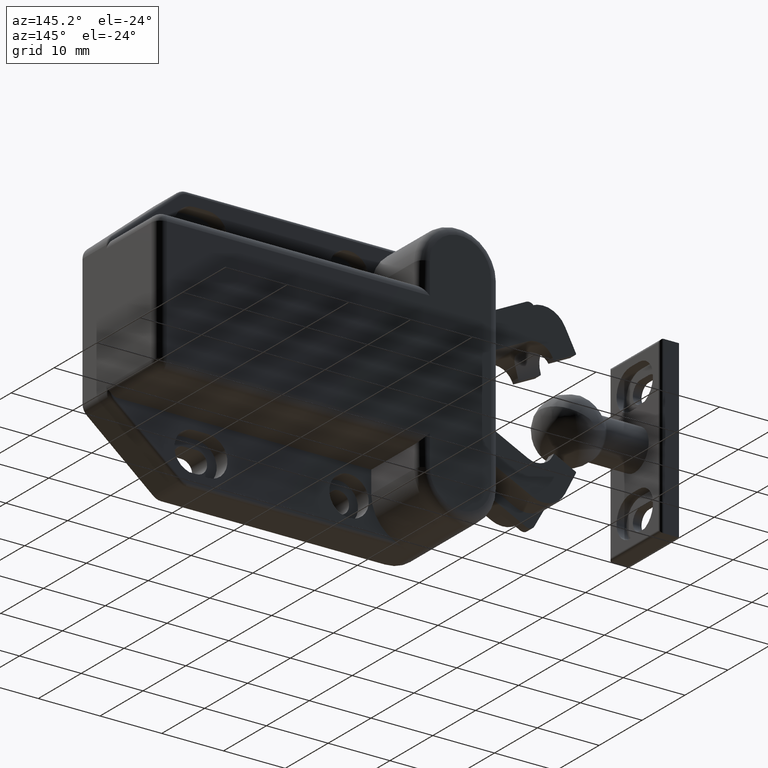
[diagram: clean part render]
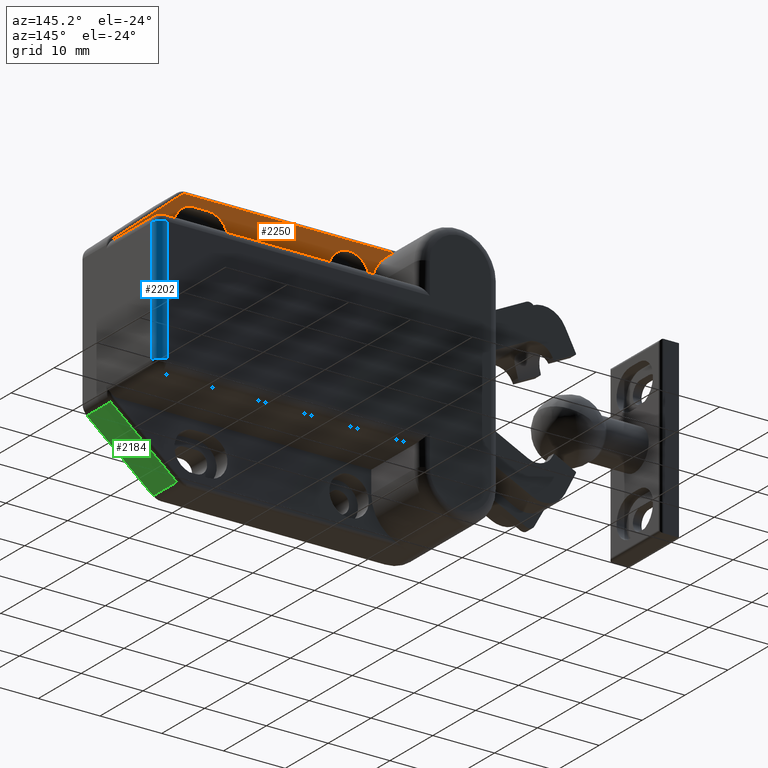
[diagram: same view with three faces highlighted in distinct colors, each labeled with its STEP entity id]
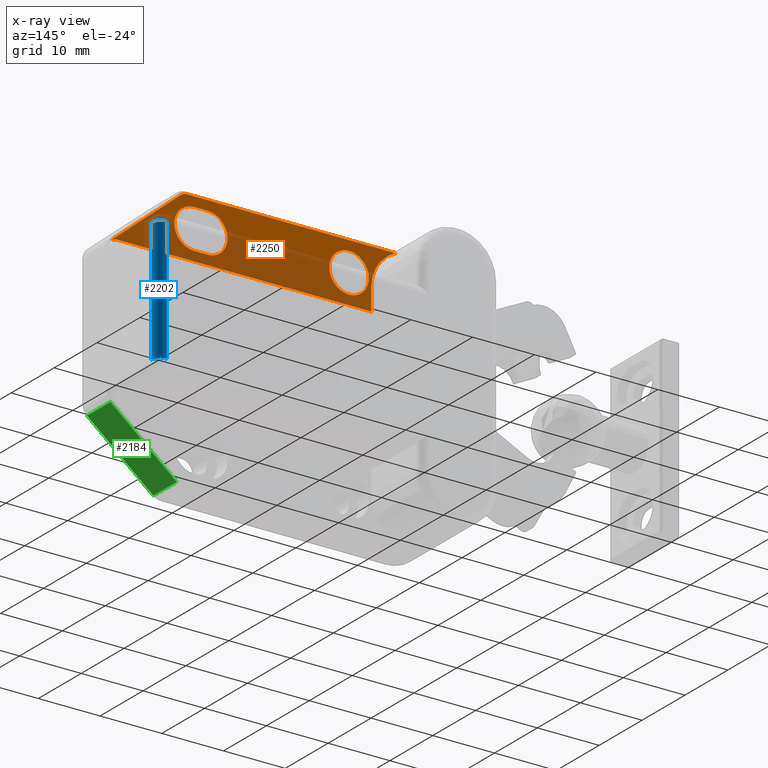
[diagram: x-ray of the same camera — body ghosted, the three highlighted faces saturated]
A machine part, auxiliary view with three faces highlighted in distinct colors.
The next image is the same camera in x-ray (body ghosted, the three faces saturated) — at least one of them is partly hidden behind the body in this view.
Their STEP definitions:

[orange] entity #2250 — the highlighted planar face has unit normal (0, 1, -0).
#49=FACE_BOUND('',#814,.T.);
#50=FACE_BOUND('',#815,.T.);
#109=PLANE('',#2457);
#163=LINE('',#3347,#359);
#165=LINE('',#3366,#361);
#223=LINE('',#3598,#419);
#227=LINE('',#3609,#423);
#257=LINE('',#3680,#453);
#259=LINE('',#3684,#455);
#359=VECTOR('',#2624,33.8359202100396);
#361=VECTOR('',#2638,13.9596495894818);
#419=VECTOR('',#2880,2.2);
#423=VECTOR('',#2892,2.2);
#453=VECTOR('',#2960,41.1);
#455=VECTOR('',#2964,3.54999999999998);
#672=FACE_OUTER_BOUND('',#813,.T.);
#813=EDGE_LOOP('',(#1850,#1851,#1852,#1853,#1854,#1855,#1856,#1857));
#814=EDGE_LOOP('',(#1858));
#815=EDGE_LOOP('',(#1859,#1860,#1861,#1862));
#900=CIRCLE('',#2336,1.5);
#904=CIRCLE('',#2342,1.5);
#946=CIRCLE('',#2426,3.2);
#947=CIRCLE('',#2429,3.2);
#949=CIRCLE('',#2433,3.2);
#955=CIRCLE('',#2453,1.5);
#956=CIRCLE('',#2458,6.45);
#1013=VERTEX_POINT('',#3344);
#1014=VERTEX_POINT('',#3346);
#1017=VERTEX_POINT('',#3358);
#1019=VERTEX_POINT('',#3364);
#1021=VERTEX_POINT('',#3370);
#1084=VERTEX_POINT('',#3584);
#1085=VERTEX_POINT('',#3588);
#1086=VERTEX_POINT('',#3589);
#1089=VERTEX_POINT('',#3597);
#1091=VERTEX_POINT('',#3603);
#1113=VERTEX_POINT('',#3674);
#1114=VERTEX_POINT('',#3678);
#1115=VERTEX_POINT('',#3682);
#1230=EDGE_CURVE('',#1013,#1014,#163,.T.);
#1234=EDGE_CURVE('',#1017,#1013,#900,.T.);
#1237=EDGE_CURVE('',#1019,#1017,#165,.T.);
#1240=EDGE_CURVE('',#1021,#1019,#904,.T.);
#1340=EDGE_CURVE('',#1084,#1084,#946,.T.);
#1341=EDGE_CURVE('',#1085,#1086,#947,.T.);
#1345=EDGE_CURVE('',#1089,#1085,#223,.T.);
#1348=EDGE_CURVE('',#1091,#1089,#949,.T.);
#1351=EDGE_CURVE('',#1086,#1091,#227,.T.);
#1384=EDGE_CURVE('',#1021,#1113,#955,.T.);
#1386=EDGE_CURVE('',#1113,#1114,#257,.T.);
#1388=EDGE_CURVE('',#1114,#1115,#259,.T.);
#1389=EDGE_CURVE('',#1115,#1014,#956,.T.);
#1850=ORIENTED_EDGE('',*,*,#1240,.F.);
#1851=ORIENTED_EDGE('',*,*,#1384,.T.);
#1852=ORIENTED_EDGE('',*,*,#1386,.T.);
#1853=ORIENTED_EDGE('',*,*,#1388,.T.);
#1854=ORIENTED_EDGE('',*,*,#1389,.T.);
#1855=ORIENTED_EDGE('',*,*,#1230,.F.);
#1856=ORIENTED_EDGE('',*,*,#1234,.F.);
#1857=ORIENTED_EDGE('',*,*,#1237,.F.);
#1858=ORIENTED_EDGE('',*,*,#1340,.T.);
#1859=ORIENTED_EDGE('',*,*,#1341,.T.);
#1860=ORIENTED_EDGE('',*,*,#1351,.T.);
#1861=ORIENTED_EDGE('',*,*,#1348,.T.);
#1862=ORIENTED_EDGE('',*,*,#1345,.T.);
#2250=ADVANCED_FACE('',(#672,#49,#50),#109,.T.);
#2336=AXIS2_PLACEMENT_3D('',#3360,#2630,#2631);
#2342=AXIS2_PLACEMENT_3D('',#3372,#2644,#2645);
#2426=AXIS2_PLACEMENT_3D('',#3585,#2866,#2867);
#2429=AXIS2_PLACEMENT_3D('',#3590,#2872,#2873);
#2433=AXIS2_PLACEMENT_3D('',#3604,#2885,#2886);
#2453=AXIS2_PLACEMENT_3D('',#3676,#2955,#2956);
#2457=AXIS2_PLACEMENT_3D('',#3686,#2967,#2968);
#2458=AXIS2_PLACEMENT_3D('',#3687,#2969,#2970);
#2624=DIRECTION('',(3.59586404736893E-16,1.,0.));
#2630=DIRECTION('center_axis',(0.,0.,-1.));
#2631=DIRECTION('ref_axis',(-0.940271577683112,-0.340425263753018,0.));
#2638=DIRECTION('',(-0.64018439966448,0.768221279597376,0.));
#2644=DIRECTION('center_axis',(0.,0.,-1.));
#2645=DIRECTION('ref_axis',(-0.424155396249723,-0.90558942122368,0.));
#2866=DIRECTION('center_axis',(0.,0.,-1.));
#2867=DIRECTION('ref_axis',(-1.,0.,0.));
#2872=DIRECTION('center_axis',(0.,0.,-1.));
#2873=DIRECTION('ref_axis',(1.,0.,0.));
#2880=DIRECTION('',(1.00929365875014E-15,1.,0.));
#2885=DIRECTION('center_axis',(0.,0.,-1.));
#2886=DIRECTION('ref_axis',(-1.,0.,0.));
#2892=DIRECTION('',(1.00929365875014E-15,-1.,0.));
#2955=DIRECTION('center_axis',(0.,0.,-1.));
#2956=DIRECTION('ref_axis',(-1.,-2.96059473233376E-15,0.));
#2960=DIRECTION('',(-6.48305415839507E-16,1.,0.));
#2964=DIRECTION('',(-1.,-1.47537943471782E-16,0.));
#2967=DIRECTION('center_axis',(0.,0.,1.));
#2968=DIRECTION('ref_axis',(1.,0.,0.));
#2969=DIRECTION('center_axis',(0.,0.,-1.));
#2970=DIRECTION('ref_axis',(-1.37702080573663E-15,1.,0.));
#3344=CARTESIAN_POINT('',(-21.,-15.0259001296373,6.));
#3346=CARTESIAN_POINT('',(-21.,18.8100200804023,6.));
#3347=CARTESIAN_POINT('',(-21.,10.9646490264175,6.));
#3358=CARTESIAN_POINT('',(-20.6523319193961,-15.9861767291341,6.));
#3360=CARTESIAN_POINT('Origin',(-19.5,-15.0259001296373,6.));
#3364=CARTESIAN_POINT('',(-11.7155820274272,-26.7102765994967,6.));
#3366=CARTESIAN_POINT('',(-20.7378478977837,-15.8835575550689,6.));
#3370=CARTESIAN_POINT('',(-11.2455363938257,-27.085846332561,6.));
#3372=CARTESIAN_POINT('Origin',(-10.5632501080311,-25.75,6.));
#3584=CARTESIAN_POINT('',(-13.05,11.25,6.));
#3585=CARTESIAN_POINT('Origin',(-16.25,11.25,6.));
#3588=CARTESIAN_POINT('',(-19.45,-11.65,6.));
#3589=CARTESIAN_POINT('',(-13.05,-11.65,6.));
#3590=CARTESIAN_POINT('Origin',(-16.25,-11.65,6.));
#3597=CARTESIAN_POINT('',(-19.45,-13.85,6.));
#3598=CARTESIAN_POINT('',(-19.45,-6.61035097358245,6.));
#3603=CARTESIAN_POINT('',(-13.05,-13.85,6.));
#3604=CARTESIAN_POINT('Origin',(-16.25,-13.85,6.));
#3609=CARTESIAN_POINT('',(-13.05,-5.51035097358247,6.));
#3674=CARTESIAN_POINT('',(-11.5,-26.25,6.));
#3676=CARTESIAN_POINT('Origin',(-10.,-26.25,6.));
#3678=CARTESIAN_POINT('',(-11.5,14.85,6.));
#3680=CARTESIAN_POINT('',(-11.5,7.73964902641754,6.));
#3682=CARTESIAN_POINT('',(-15.05,14.85,6.));
#3684=CARTESIAN_POINT('',(-7.525,14.85,6.));
#3686=CARTESIAN_POINT('Origin',(-1.91816329456901E-15,0.629298052835074,
6.));
#3687=CARTESIAN_POINT('Origin',(-15.05,21.3,6.));

[blue] entity #2202 — the highlighted cylindrical surface (edge-blend (fillet) strip) has radius 1.5 mm, axis along (0, -0, -1).
#185=LINE('',#3461,#381);
#186=LINE('',#3463,#382);
#381=VECTOR('',#2728,20.);
#382=VECTOR('',#2731,20.);
#558=CYLINDRICAL_SURFACE('',#2373,1.5);
#624=FACE_OUTER_BOUND('',#755,.T.);
#755=EDGE_LOOP('',(#1628,#1629,#1630,#1631));
#920=CIRCLE('',#2374,1.5);
#921=CIRCLE('',#2375,1.5);
#1032=VERTEX_POINT('',#3416);
#1038=VERTEX_POINT('',#3431);
#1046=VERTEX_POINT('',#3458);
#1047=VERTEX_POINT('',#3460);
#1278=EDGE_CURVE('',#1032,#1046,#920,.T.);
#1279=EDGE_CURVE('',#1046,#1047,#185,.T.);
#1280=EDGE_CURVE('',#1047,#1038,#921,.T.);
#1281=EDGE_CURVE('',#1038,#1032,#186,.T.);
#1628=ORIENTED_EDGE('',*,*,#1278,.T.);
#1629=ORIENTED_EDGE('',*,*,#1279,.T.);
#1630=ORIENTED_EDGE('',*,*,#1280,.T.);
#1631=ORIENTED_EDGE('',*,*,#1281,.T.);
#2202=ADVANCED_FACE('',(#624),#558,.T.);
#2373=AXIS2_PLACEMENT_3D('',#3457,#2724,#2725);
#2374=AXIS2_PLACEMENT_3D('',#3459,#2726,#2727);
#2375=AXIS2_PLACEMENT_3D('',#3462,#2729,#2730);
#2724=DIRECTION('center_axis',(1.,1.93082265152201E-16,0.));
#2725=DIRECTION('ref_axis',(0.,-0.707106781186548,0.707106781186548));
#2726=DIRECTION('center_axis',(1.,0.,0.));
#2727=DIRECTION('ref_axis',(0.,0.,1.));
#2728=DIRECTION('',(1.,1.93082265152201E-16,0.));
#2729=DIRECTION('center_axis',(-1.,-7.40148683083438E-16,0.));
#2730=DIRECTION('ref_axis',(7.40148683083438E-16,-1.,0.));
#2731=DIRECTION('',(-1.,-1.93082265152201E-16,0.));
#3416=CARTESIAN_POINT('',(-10.,-26.25,17.5));
#3431=CARTESIAN_POINT('',(10.,-26.25,17.5));
#3457=CARTESIAN_POINT('Origin',(-5.74999732088289,-26.25,16.));
#3458=CARTESIAN_POINT('',(-10.,-27.75,16.));
#3459=CARTESIAN_POINT('Origin',(-10.,-26.25,16.));
#3460=CARTESIAN_POINT('',(10.,-27.75,16.));
#3461=CARTESIAN_POINT('',(-5.74999732088289,-27.75,16.));
#3462=CARTESIAN_POINT('Origin',(10.,-26.25,16.));
#3463=CARTESIAN_POINT('',(-5.74999732088289,-26.25,17.5));

[green] entity #2184 — the highlighted planar face has unit normal (0.6402, -0, -0.7682).
#78=PLANE('',#2331);
#153=LINE('',#3290,#349);
#160=LINE('',#3336,#356);
#161=LINE('',#3340,#357);
#162=LINE('',#3341,#358);
#349=VECTOR('',#2584,13.9596495894818);
#356=VECTOR('',#2613,5.5);
#357=VECTOR('',#2618,5.5);
#358=VECTOR('',#2619,13.9596495894818);
#606=FACE_OUTER_BOUND('',#737,.T.);
#737=EDGE_LOOP('',(#1556,#1557,#1558,#1559));
#997=VERTEX_POINT('',#3280);
#999=VERTEX_POINT('',#3286);
#1010=VERTEX_POINT('',#3335);
#1011=VERTEX_POINT('',#3339);
#1210=EDGE_CURVE('',#997,#999,#153,.T.);
#1225=EDGE_CURVE('',#999,#1010,#160,.T.);
#1227=EDGE_CURVE('',#1011,#997,#161,.T.);
#1228=EDGE_CURVE('',#1010,#1011,#162,.T.);
#1556=ORIENTED_EDGE('',*,*,#1210,.F.);
#1557=ORIENTED_EDGE('',*,*,#1227,.F.);
#1558=ORIENTED_EDGE('',*,*,#1228,.F.);
#1559=ORIENTED_EDGE('',*,*,#1225,.F.);
#2184=ADVANCED_FACE('',(#606),#78,.T.);
#2331=AXIS2_PLACEMENT_3D('',#3338,#2616,#2617);
#2584=DIRECTION('',(0.64018439966448,0.768221279597376,0.));
#2613=DIRECTION('',(0.,0.,-1.));
#2616=DIRECTION('center_axis',(0.768221279597376,-0.64018439966448,0.));
#2617=DIRECTION('ref_axis',(0.64018439966448,0.768221279597376,0.));
#2618=DIRECTION('',(0.,0.,1.));
#2619=DIRECTION('',(-0.64018439966448,-0.768221279597376,0.));
#3280=CARTESIAN_POINT('',(12.0996926672259,-27.030368799329,5.5));
#3286=CARTESIAN_POINT('',(21.0364425591948,-16.3062689289663,5.5));
#3290=CARTESIAN_POINT('',(16.1219585375824,-22.2036497549011,5.5));
#3335=CARTESIAN_POINT('',(21.0364425591948,-16.3062689289663,0.));
#3336=CARTESIAN_POINT('',(21.0364425591948,-16.3062689289663,0.));
#3338=CARTESIAN_POINT('Origin',(11.5,-27.75,0.));
#3339=CARTESIAN_POINT('',(12.0996926672259,-27.030368799329,0.));
#3340=CARTESIAN_POINT('',(12.0996926672259,-27.030368799329,0.));
#3341=CARTESIAN_POINT('',(21.5,-15.75,0.));